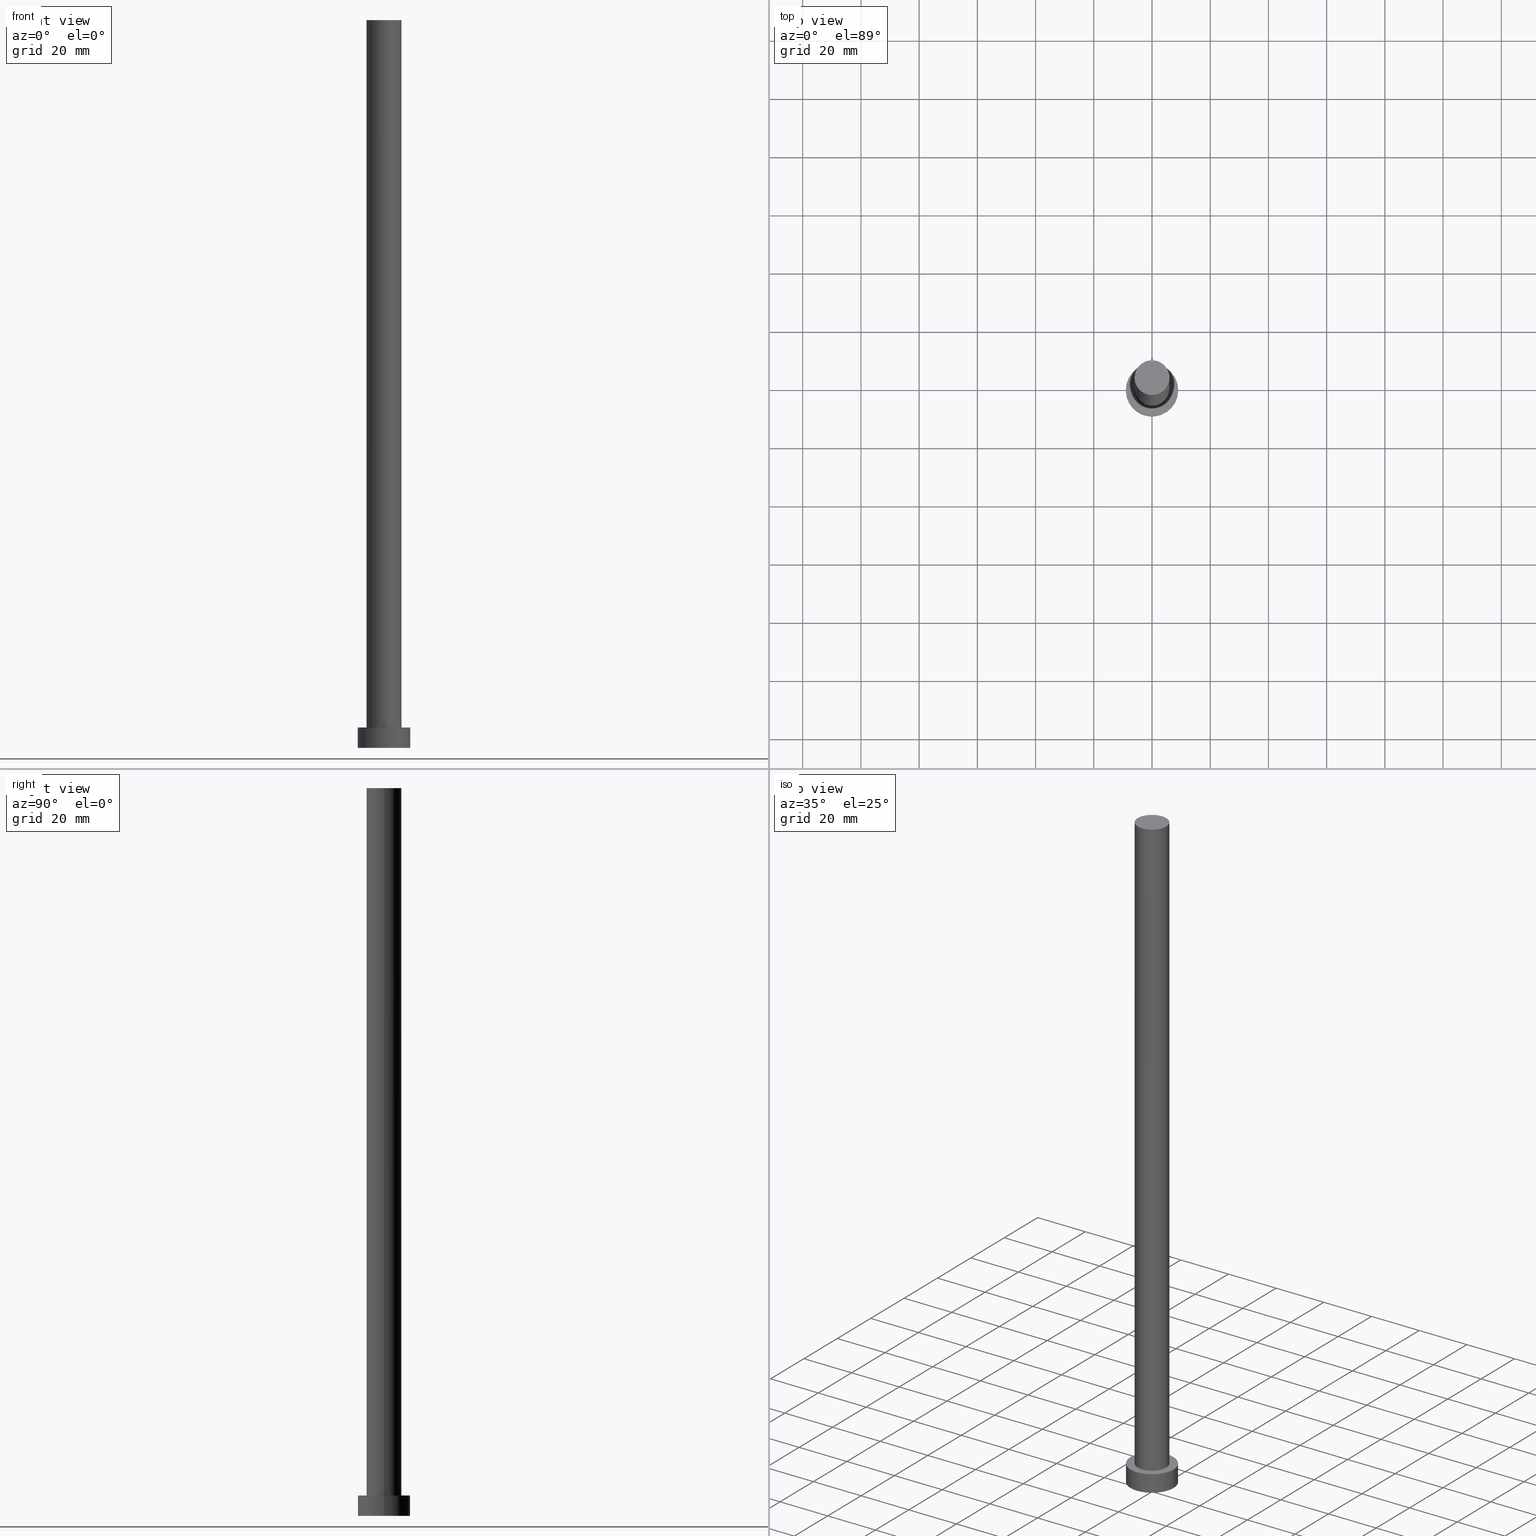
[diagram: canonical four-view strip — front | top / right | iso, engineering-drawing reading convention]
A machine part, canonical four-view strip (front | top / right | iso — engineering-drawing reading convention). The complete STEP part file that produces these views, byte-faithful:
ISO-10303-21;
HEADER;
FILE_DESCRIPTION (( 'STEP AP203' ),
    '1' );
FILE_NAME ('e88b.STEP',
    '2023-02-12T10:49:21',
    ( '' ),
    ( '' ),
    'SwSTEP 2.0',
    'SolidWorks 2019',
    '' );
FILE_SCHEMA (( 'CONFIG_CONTROL_DESIGN' ));
ENDSEC;

DATA;
#1 = EDGE_CURVE ( 'NONE', #241, #86, #206, .T. ) ;
#2 = APPROVAL ( #25, 'NEUR�EN�' ) ;
#3 = MANIFOLD_SOLID_BREP ( 'P�idat vysunut�m3', #160 ) ;
#4 = DIRECTION ( 'NONE',  ( 0.000000000000000000, 0.000000000000000000, 1.000000000000000000 ) ) ;
#5 = AXIS2_PLACEMENT_3D ( 'NONE', #195, #57, #120 ) ;
#6 = AXIS2_PLACEMENT_3D ( 'NONE', #229, #185, #248 ) ;
#7 = EDGE_CURVE ( 'NONE', #53, #50, #18, .T. ) ;
#8 = EDGE_CURVE ( 'NONE', #50, #148, #132, .T. ) ;
#9 = DATE_AND_TIME ( #237, #32 ) ;
#10 = EDGE_LOOP ( 'NONE', ( #209, #207, #124, #110 ) ) ;
#11 = AXIS2_PLACEMENT_3D ( 'NONE', #236, #40, #215 ) ;
#12 = CARTESIAN_POINT ( 'NONE',  ( 0.000000000000000000, 0.000000000000000000, 250.0000000000000000 ) ) ;
#13 = EDGE_LOOP ( 'NONE', ( #72, #33 ) ) ;
#14 = PRODUCT_RELATED_PRODUCT_CATEGORY ( 'detail', '', ( #221 ) ) ;
#15 = CARTESIAN_POINT ( 'NONE',  ( -9.000000000000000000, 0.000000000000000000, 7.000000000000000000 ) ) ;
#16 = SECURITY_CLASSIFICATION ( '', '', #49 ) ;
#17 = APPLICATION_PROTOCOL_DEFINITION ( 'international standard', 'config_control_design', 1994, #96 ) ;
#18 = LINE ( 'NONE', #168, #211 ) ;
#19 = DIRECTION ( 'NONE',  ( 0.000000000000000000, 0.000000000000000000, 1.000000000000000000 ) ) ;
#20 = CARTESIAN_POINT ( 'NONE',  ( 0.000000000000000000, 0.000000000000000000, 0.000000000000000000 ) ) ;
#21 = DIRECTION ( 'NONE',  ( 0.000000000000000000, 0.000000000000000000, 1.000000000000000000 ) ) ;
#22 = CYLINDRICAL_SURFACE ( 'NONE', #66, 9.000000000000000000 ) ;
#23 = DATE_AND_TIME ( #121, #162 ) ;
#24 = ORIENTED_EDGE ( 'NONE', *, *, #8, .F. ) ;
#25 = APPROVAL_STATUS ( 'not_yet_approved' ) ;
#26 = EDGE_LOOP ( 'NONE', ( #63, #92 ) ) ;
#27 = AXIS2_PLACEMENT_3D ( 'NONE', #158, #21, #238 ) ;
#28 = AXIS2_PLACEMENT_3D ( 'NONE', #192, #139, #196 ) ;
#29 = CC_DESIGN_APPROVAL ( #2, ( #16 ) ) ;
#30 = SHAPE_DEFINITION_REPRESENTATION ( #187, #141 ) ;
#31 = CARTESIAN_POINT ( 'NONE',  ( 0.000000000000000000, 0.000000000000000000, 7.000000000000000000 ) ) ;
#32 = LOCAL_TIME ( 11, 49, 21.00000000000000000, #178 ) ;
#33 = ORIENTED_EDGE ( 'NONE', *, *, #197, .F. ) ;
#34 = CC_DESIGN_PERSON_AND_ORGANIZATION_ASSIGNMENT ( #47, #218, ( #128 ) ) ;
#35 = DIRECTION ( 'NONE',  ( 0.000000000000000000, 0.000000000000000000, 1.000000000000000000 ) ) ;
#36 = CARTESIAN_POINT ( 'NONE',  ( -6.000000000000000888, 0.000000000000000000, 250.0000000000000000 ) ) ;
#37 = CIRCLE ( 'NONE', #27, 6.000000000000000888 ) ;
#38 = CARTESIAN_POINT ( 'NONE',  ( 6.000000000000000888, 7.347880794884120722E-16, 250.0000000000000000 ) ) ;
#39 = ADVANCED_FACE ( 'NONE', ( #169 ), #88, .T. ) ;
#40 = DIRECTION ( 'NONE',  ( 0.000000000000000000, 0.000000000000000000, 1.000000000000000000 ) ) ;
#41 = FACE_OUTER_BOUND ( 'NONE', #104, .T. ) ;
#42 = CIRCLE ( 'NONE', #74, 6.000000000000000888 ) ;
#43 = LINE ( 'NONE', #38, #73 ) ;
#44 = APPLICATION_CONTEXT ( 'configuration controlled 3d designs of mechanical parts and assemblies' ) ;
#45 = COORDINATED_UNIVERSAL_TIME_OFFSET ( 1, 0, .AHEAD. ) ;
#46 = DATE_AND_TIME ( #80, #234 ) ;
#47 = PERSON_AND_ORGANIZATION ( #166, #253 ) ;
#48 = EDGE_CURVE ( 'NONE', #107, #53, #42, .T. ) ;
#49 = SECURITY_CLASSIFICATION_LEVEL ( 'unclassified' ) ;
#50 = VERTEX_POINT ( 'NONE', #170 ) ;
#51 = CARTESIAN_POINT ( 'NONE',  ( 0.000000000000000000, 0.000000000000000000, 7.000000000000000000 ) ) ;
#52 = CARTESIAN_POINT ( 'NONE',  ( 0.000000000000000000, 0.000000000000000000, 250.0000000000000000 ) ) ;
#53 = VERTEX_POINT ( 'NONE', #36 ) ;
#54 = DIRECTION ( 'NONE',  ( -0.000000000000000000, -0.000000000000000000, -1.000000000000000000 ) ) ;
#55 = DIRECTION ( 'NONE',  ( 0.000000000000000000, 0.000000000000000000, 1.000000000000000000 ) ) ;
#56 = EDGE_CURVE ( 'NONE', #133, #241, #191, .T. ) ;
#57 = DIRECTION ( 'NONE',  ( 0.000000000000000000, 0.000000000000000000, 1.000000000000000000 ) ) ;
#58 = UNCERTAINTY_MEASURE_WITH_UNIT (LENGTH_MEASURE( 1.000000000000000082E-05 ), #97, 'distance_accuracy_value', 'NONE');
#59 = DIRECTION ( 'NONE',  ( -1.000000000000000000, 0.000000000000000000, 0.000000000000000000 ) ) ;
#60 = ADVANCED_FACE ( 'NONE', ( #156, #249 ), #252, .T. ) ;
#61 = PERSON_AND_ORGANIZATION_ROLE ( 'classification_officer' ) ;
#62 = EDGE_LOOP ( 'NONE', ( #24, #188 ) ) ;
#63 = ORIENTED_EDGE ( 'NONE', *, *, #150, .T. ) ;
#64 = DATE_TIME_ROLE ( 'classification_date' ) ;
#65 = ORIENTED_EDGE ( 'NONE', *, *, #1, .F. ) ;
#66 = AXIS2_PLACEMENT_3D ( 'NONE', #94, #54, #59 ) ;
#67 = DIRECTION ( 'NONE',  ( -0.000000000000000000, -0.000000000000000000, -1.000000000000000000 ) ) ;
#68 = DIRECTION ( 'NONE',  ( -0.000000000000000000, -0.000000000000000000, -1.000000000000000000 ) ) ;
#69 = ORIENTED_EDGE ( 'NONE', *, *, #56, .F. ) ;
#70 = AXIS2_PLACEMENT_3D ( 'NONE', #108, #4, #137 ) ;
#71 = DIRECTION ( 'NONE',  ( -0.000000000000000000, -0.000000000000000000, -1.000000000000000000 ) ) ;
#72 = ORIENTED_EDGE ( 'NONE', *, *, #204, .F. ) ;
#73 = VECTOR ( 'NONE', #136, 1000.000000000000000 ) ;
#74 = AXIS2_PLACEMENT_3D ( 'NONE', #12, #113, #227 ) ;
#75 = DIRECTION ( 'NONE',  ( 0.000000000000000000, 0.000000000000000000, 1.000000000000000000 ) ) ;
#76 = FACE_OUTER_BOUND ( 'NONE', #26, .T. ) ;
#77 = CC_DESIGN_SECURITY_CLASSIFICATION ( #16, ( #223 ) ) ;
#78 = AXIS2_PLACEMENT_3D ( 'NONE', #51, #35, #127 ) ;
#79 =( NAMED_UNIT ( * ) SI_UNIT ( $, .STERADIAN. ) SOLID_ANGLE_UNIT ( ) );
#80 = CALENDAR_DATE ( 2023, 12, 2 ) ;
#81 = COORDINATED_UNIVERSAL_TIME_OFFSET ( 1, 0, .AHEAD. ) ;
#82 = PERSON_AND_ORGANIZATION ( #166, #253 ) ;
#83 = APPROVAL_ROLE ( '' ) ;
#84 = EDGE_CURVE ( 'NONE', #133, #190, #205, .T. ) ;
#85 = APPROVAL_PERSON_ORGANIZATION ( #123, #175, #83 ) ;
#86 = VERTEX_POINT ( 'NONE', #129 ) ;
#87 = PERSON_AND_ORGANIZATION ( #166, #253 ) ;
#88 = CYLINDRICAL_SURFACE ( 'NONE', #149, 6.000000000000000888 ) ;
#89 = CARTESIAN_POINT ( 'NONE',  ( 9.000000000000000000, 1.102182119232617714E-15, 7.000000000000000000 ) ) ;
#90 = DIRECTION ( 'NONE',  ( 0.000000000000000000, 0.000000000000000000, 1.000000000000000000 ) ) ;
#91 = APPROVAL_PERSON_ORGANIZATION ( #235, #142, #98 ) ;
#92 = ORIENTED_EDGE ( 'NONE', *, *, #48, .T. ) ;
#93 = ADVANCED_FACE ( 'NONE', ( #232 ), #251, .T. ) ;
#94 = CARTESIAN_POINT ( 'NONE',  ( 0.000000000000000000, 0.000000000000000000, 7.000000000000000000 ) ) ;
#95 = EDGE_CURVE ( 'NONE', #241, #133, #242, .T. ) ;
#96 = APPLICATION_CONTEXT ( 'configuration controlled 3d designs of mechanical parts and assemblies' ) ;
#97 =( LENGTH_UNIT ( ) NAMED_UNIT ( * ) SI_UNIT ( .MILLI., .METRE. ) );
#98 = APPROVAL_ROLE ( '' ) ;
#99 = DESIGN_CONTEXT ( 'detailed design', #44, 'design' ) ;
#100 = CYLINDRICAL_SURFACE ( 'NONE', #28, 6.000000000000000888 ) ;
#101 = CC_DESIGN_DATE_AND_TIME_ASSIGNMENT ( #23, #198, ( #128 ) ) ;
#102 = APPROVAL_STATUS ( 'not_yet_approved' ) ;
#103 = ORIENTED_EDGE ( 'NONE', *, *, #150, .F. ) ;
#104 = EDGE_LOOP ( 'NONE', ( #246, #103, #231, #226 ) ) ;
#105 = CC_DESIGN_PERSON_AND_ORGANIZATION_ASSIGNMENT ( #82, #61, ( #16 ) ) ;
#106 =( NAMED_UNIT ( * ) PLANE_ANGLE_UNIT ( ) SI_UNIT ( $, .RADIAN. ) );
#107 = VERTEX_POINT ( 'NONE', #157 ) ;
#108 = CARTESIAN_POINT ( 'NONE',  ( 0.000000000000000000, 0.000000000000000000, 7.000000000000000000 ) ) ;
#109 = CIRCLE ( 'NONE', #119, 9.000000000000000000 ) ;
#110 = ORIENTED_EDGE ( 'NONE', *, *, #7, .F. ) ;
#111 = EDGE_LOOP ( 'NONE', ( #220, #186 ) ) ;
#112 = ADVANCED_FACE ( 'NONE', ( #41 ), #100, .T. ) ;
#113 = DIRECTION ( 'NONE',  ( 0.000000000000000000, 0.000000000000000000, 1.000000000000000000 ) ) ;
#114 = EDGE_LOOP ( 'NONE', ( #65, #69, #131, #208 ) ) ;
#115 = VECTOR ( 'NONE', #189, 1000.000000000000000 ) ;
#116 = CARTESIAN_POINT ( 'NONE',  ( 0.000000000000000000, 0.000000000000000000, 0.000000000000000000 ) ) ;
#117 = DIRECTION ( 'NONE',  ( 1.000000000000000000, 0.000000000000000000, 0.000000000000000000 ) ) ;
#118 = CARTESIAN_POINT ( 'NONE',  ( 6.000000000000000888, 7.347880794884120722E-16, 7.000000000000000000 ) ) ;
#119 = AXIS2_PLACEMENT_3D ( 'NONE', #179, #19, #193 ) ;
#120 = DIRECTION ( 'NONE',  ( 1.000000000000000000, 0.000000000000000000, 0.000000000000000000 ) ) ;
#121 = CALENDAR_DATE ( 2023, 12, 2 ) ;
#122 = ADVANCED_FACE ( 'NONE', ( #255 ), #22, .T. ) ;
#123 = PERSON_AND_ORGANIZATION ( #166, #253 ) ;
#124 = ORIENTED_EDGE ( 'NONE', *, *, #143, .T. ) ;
#125 = CC_DESIGN_APPROVAL ( #142, ( #128 ) ) ;
#126 = PERSON_AND_ORGANIZATION_ROLE ( 'creator' ) ;
#127 = DIRECTION ( 'NONE',  ( 1.000000000000000000, 0.000000000000000000, -0.000000000000000000 ) ) ;
#128 = PRODUCT_DEFINITION ( 'NEZN�M�', '', #223, #99 ) ;
#129 = CARTESIAN_POINT ( 'NONE',  ( 9.000000000000000000, 1.102182119232617714E-15, 0.000000000000000000 ) ) ;
#130 = AXIS2_PLACEMENT_3D ( 'NONE', #212, #75, #194 ) ;
#131 = ORIENTED_EDGE ( 'NONE', *, *, #84, .T. ) ;
#132 = CIRCLE ( 'NONE', #6, 6.000000000000000888 ) ;
#133 = VERTEX_POINT ( 'NONE', #233 ) ;
#134 = CC_DESIGN_DATE_AND_TIME_ASSIGNMENT ( #203, #64, ( #16 ) ) ;
#135 = ORIENTED_EDGE ( 'NONE', *, *, #95, .F. ) ;
#136 = DIRECTION ( 'NONE',  ( -0.000000000000000000, -0.000000000000000000, -1.000000000000000000 ) ) ;
#137 = DIRECTION ( 'NONE',  ( 1.000000000000000000, 0.000000000000000000, 0.000000000000000000 ) ) ;
#138 = DIRECTION ( 'NONE',  ( 0.000000000000000000, 0.000000000000000000, 1.000000000000000000 ) ) ;
#139 = DIRECTION ( 'NONE',  ( -0.000000000000000000, -0.000000000000000000, -1.000000000000000000 ) ) ;
#140 = ADVANCED_FACE ( 'NONE', ( #76 ), #174, .T. ) ;
#141 = ADVANCED_BREP_SHAPE_REPRESENTATION ( 'e88b', ( #3, #155 ), #247 ) ;
#142 = APPROVAL ( #213, 'NEUR�EN�' ) ;
#143 = EDGE_CURVE ( 'NONE', #148, #50, #159, .T. ) ;
#144 = EDGE_CURVE ( 'NONE', #107, #148, #43, .T. ) ;
#145 = COORDINATED_UNIVERSAL_TIME_OFFSET ( 1, 0, .AHEAD. ) ;
#146 = PERSON_AND_ORGANIZATION ( #166, #253 ) ;
#147 = CALENDAR_DATE ( 2023, 12, 2 ) ;
#148 = VERTEX_POINT ( 'NONE', #118 ) ;
#149 = AXIS2_PLACEMENT_3D ( 'NONE', #52, #67, #151 ) ;
#150 = EDGE_CURVE ( 'NONE', #53, #107, #37, .T. ) ;
#151 = DIRECTION ( 'NONE',  ( -1.000000000000000000, 0.000000000000000000, 0.000000000000000000 ) ) ;
#152 = PERSON_AND_ORGANIZATION_ROLE ( 'design_owner' ) ;
#153 = DIRECTION ( 'NONE',  ( -1.000000000000000000, 0.000000000000000000, 0.000000000000000000 ) ) ;
#154 = CC_DESIGN_PERSON_AND_ORGANIZATION_ASSIGNMENT ( #180, #181, ( #223 ) ) ;
#155 = AXIS2_PLACEMENT_3D ( 'NONE', #20, #138, #214 ) ;
#156 = FACE_BOUND ( 'NONE', #62, .T. ) ;
#157 = CARTESIAN_POINT ( 'NONE',  ( 6.000000000000000888, 7.347880794884120722E-16, 250.0000000000000000 ) ) ;
#158 = CARTESIAN_POINT ( 'NONE',  ( 0.000000000000000000, 0.000000000000000000, 250.0000000000000000 ) ) ;
#159 = CIRCLE ( 'NONE', #5, 6.000000000000000888 ) ;
#160 = CLOSED_SHELL ( 'NONE', ( #39, #93, #122, #60, #217, #112, #140 ) ) ;
#161 = CARTESIAN_POINT ( 'NONE',  ( 9.000000000000000000, 1.102182119232617714E-15, 7.000000000000000000 ) ) ;
#162 = LOCAL_TIME ( 11, 49, 21.00000000000000000, #45 ) ;
#163 = APPROVAL_DATE_TIME ( #9, #142 ) ;
#164 = APPROVAL_ROLE ( '' ) ;
#165 = APPROVAL_DATE_TIME ( #46, #175 ) ;
#166 = PERSON ( 'NEUR�EN�', 'NEUR�EN�', 'NEUR�EN�', ('NEUR�EN�'), ('NEUR�EN�'), ('NEUR�EN�') ) ;
#167 = CC_DESIGN_APPROVAL ( #175, ( #223 ) ) ;
#168 = CARTESIAN_POINT ( 'NONE',  ( -6.000000000000000888, 0.000000000000000000, 250.0000000000000000 ) ) ;
#169 = FACE_OUTER_BOUND ( 'NONE', #10, .T. ) ;
#170 = CARTESIAN_POINT ( 'NONE',  ( -6.000000000000000888, 0.000000000000000000, 7.000000000000000000 ) ) ;
#171 = DIRECTION ( 'NONE',  ( -0.000000000000000000, -0.000000000000000000, -1.000000000000000000 ) ) ;
#172 = MECHANICAL_CONTEXT ( 'NONE', #96, 'mechanical' ) ;
#173 = CARTESIAN_POINT ( 'NONE',  ( 0.000000000000000000, 0.000000000000000000, 7.000000000000000000 ) ) ;
#174 = PLANE ( 'NONE',  #11 ) ;
#175 = APPROVAL ( #102, 'NEUR�EN�' ) ;
#176 = FACE_OUTER_BOUND ( 'NONE', #13, .T. ) ;
#177 = LOCAL_TIME ( 11, 49, 21.00000000000000000, #81 ) ;
#178 = COORDINATED_UNIVERSAL_TIME_OFFSET ( 1, 0, .AHEAD. ) ;
#179 = CARTESIAN_POINT ( 'NONE',  ( 0.000000000000000000, 0.000000000000000000, 0.000000000000000000 ) ) ;
#180 = PERSON_AND_ORGANIZATION ( #166, #253 ) ;
#181 = PERSON_AND_ORGANIZATION_ROLE ( 'design_supplier' ) ;
#182 = APPROVAL_PERSON_ORGANIZATION ( #146, #2, #164 ) ;
#183 = AXIS2_PLACEMENT_3D ( 'NONE', #173, #90, #250 ) ;
#184 = ORIENTED_EDGE ( 'NONE', *, *, #84, .F. ) ;
#185 = DIRECTION ( 'NONE',  ( 0.000000000000000000, 0.000000000000000000, 1.000000000000000000 ) ) ;
#186 = ORIENTED_EDGE ( 'NONE', *, *, #95, .T. ) ;
#187 = PRODUCT_DEFINITION_SHAPE ( 'NONE', 'NONE',  #128 ) ;
#188 = ORIENTED_EDGE ( 'NONE', *, *, #143, .F. ) ;
#189 = DIRECTION ( 'NONE',  ( -0.000000000000000000, -0.000000000000000000, -1.000000000000000000 ) ) ;
#190 = VERTEX_POINT ( 'NONE', #210 ) ;
#191 = CIRCLE ( 'NONE', #183, 9.000000000000000000 ) ;
#192 = CARTESIAN_POINT ( 'NONE',  ( 0.000000000000000000, 0.000000000000000000, 250.0000000000000000 ) ) ;
#193 = DIRECTION ( 'NONE',  ( 1.000000000000000000, 0.000000000000000000, 0.000000000000000000 ) ) ;
#194 = DIRECTION ( 'NONE',  ( 1.000000000000000000, 0.000000000000000000, -0.000000000000000000 ) ) ;
#195 = CARTESIAN_POINT ( 'NONE',  ( 0.000000000000000000, 0.000000000000000000, 7.000000000000000000 ) ) ;
#196 = DIRECTION ( 'NONE',  ( -1.000000000000000000, 0.000000000000000000, 0.000000000000000000 ) ) ;
#197 = EDGE_CURVE ( 'NONE', #86, #190, #230, .T. ) ;
#198 = DATE_TIME_ROLE ( 'creation_date' ) ;
#199 = PERSON_AND_ORGANIZATION ( #166, #253 ) ;
#200 = DATE_AND_TIME ( #147, #224 ) ;
#201 = ORIENTED_EDGE ( 'NONE', *, *, #1, .T. ) ;
#202 = ORIENTED_EDGE ( 'NONE', *, *, #197, .T. ) ;
#203 = DATE_AND_TIME ( #240, #177 ) ;
#204 = EDGE_CURVE ( 'NONE', #190, #86, #109, .T. ) ;
#205 = LINE ( 'NONE', #15, #225 ) ;
#206 = LINE ( 'NONE', #89, #115 ) ;
#207 = ORIENTED_EDGE ( 'NONE', *, *, #144, .T. ) ;
#208 = ORIENTED_EDGE ( 'NONE', *, *, #204, .T. ) ;
#209 = ORIENTED_EDGE ( 'NONE', *, *, #48, .F. ) ;
#210 = CARTESIAN_POINT ( 'NONE',  ( -9.000000000000000000, 0.000000000000000000, 0.000000000000000000 ) ) ;
#211 = VECTOR ( 'NONE', #68, 1000.000000000000000 ) ;
#212 = CARTESIAN_POINT ( 'NONE',  ( 0.000000000000000000, 0.000000000000000000, 0.000000000000000000 ) ) ;
#213 = APPROVAL_STATUS ( 'not_yet_approved' ) ;
#214 = DIRECTION ( 'NONE',  ( 1.000000000000000000, 0.000000000000000000, 0.000000000000000000 ) ) ;
#215 = DIRECTION ( 'NONE',  ( 1.000000000000000000, 0.000000000000000000, -0.000000000000000000 ) ) ;
#216 = AXIS2_PLACEMENT_3D ( 'NONE', #31, #71, #153 ) ;
#217 = ADVANCED_FACE ( 'NONE', ( #176 ), #254, .F. ) ;
#218 = PERSON_AND_ORGANIZATION_ROLE ( 'creator' ) ;
#219 = CC_DESIGN_PERSON_AND_ORGANIZATION_ASSIGNMENT ( #87, #152, ( #221 ) ) ;
#220 = ORIENTED_EDGE ( 'NONE', *, *, #56, .T. ) ;
#221 = PRODUCT ( 'e88b', 'e88b', '', ( #172 ) ) ;
#222 = COORDINATED_UNIVERSAL_TIME_OFFSET ( 1, 0, .AHEAD. ) ;
#223 = PRODUCT_DEFINITION_FORMATION_WITH_SPECIFIED_SOURCE ( 'LIBOVOLN�', '', #221, .NOT_KNOWN. ) ;
#224 = LOCAL_TIME ( 11, 49, 21.00000000000000000, #145 ) ;
#225 = VECTOR ( 'NONE', #171, 1000.000000000000000 ) ;
#226 = ORIENTED_EDGE ( 'NONE', *, *, #8, .T. ) ;
#227 = DIRECTION ( 'NONE',  ( 1.000000000000000000, 0.000000000000000000, 0.000000000000000000 ) ) ;
#228 = APPLICATION_PROTOCOL_DEFINITION ( 'international standard', 'config_control_design', 1994, #44 ) ;
#229 = CARTESIAN_POINT ( 'NONE',  ( 0.000000000000000000, 0.000000000000000000, 7.000000000000000000 ) ) ;
#230 = CIRCLE ( 'NONE', #239, 9.000000000000000000 ) ;
#231 = ORIENTED_EDGE ( 'NONE', *, *, #7, .T. ) ;
#232 = FACE_OUTER_BOUND ( 'NONE', #245, .T. ) ;
#233 = CARTESIAN_POINT ( 'NONE',  ( -9.000000000000000000, 0.000000000000000000, 7.000000000000000000 ) ) ;
#234 = LOCAL_TIME ( 11, 49, 21.00000000000000000, #222 ) ;
#235 = PERSON_AND_ORGANIZATION ( #166, #253 ) ;
#236 = CARTESIAN_POINT ( 'NONE',  ( 0.000000000000000000, 0.000000000000000000, 250.0000000000000000 ) ) ;
#237 = CALENDAR_DATE ( 2023, 12, 2 ) ;
#238 = DIRECTION ( 'NONE',  ( 1.000000000000000000, 0.000000000000000000, 0.000000000000000000 ) ) ;
#239 = AXIS2_PLACEMENT_3D ( 'NONE', #116, #55, #117 ) ;
#240 = CALENDAR_DATE ( 2023, 12, 2 ) ;
#241 = VERTEX_POINT ( 'NONE', #161 ) ;
#242 = CIRCLE ( 'NONE', #70, 9.000000000000000000 ) ;
#243 = CC_DESIGN_PERSON_AND_ORGANIZATION_ASSIGNMENT ( #199, #126, ( #223 ) ) ;
#244 = APPROVAL_DATE_TIME ( #200, #2 ) ;
#245 = EDGE_LOOP ( 'NONE', ( #135, #201, #202, #184 ) ) ;
#246 = ORIENTED_EDGE ( 'NONE', *, *, #144, .F. ) ;
#247 =( GEOMETRIC_REPRESENTATION_CONTEXT ( 3 ) GLOBAL_UNCERTAINTY_ASSIGNED_CONTEXT ( ( #58 ) ) GLOBAL_UNIT_ASSIGNED_CONTEXT ( ( #97, #106, #79 ) ) REPRESENTATION_CONTEXT ( 'NONE', 'WORKASPACE' ) );
#248 = DIRECTION ( 'NONE',  ( 1.000000000000000000, 0.000000000000000000, 0.000000000000000000 ) ) ;
#249 = FACE_OUTER_BOUND ( 'NONE', #111, .T. ) ;
#250 = DIRECTION ( 'NONE',  ( 1.000000000000000000, 0.000000000000000000, 0.000000000000000000 ) ) ;
#251 = CYLINDRICAL_SURFACE ( 'NONE', #216, 9.000000000000000000 ) ;
#252 = PLANE ( 'NONE',  #78 ) ;
#253 = ORGANIZATION ( 'NEUR�EN�', 'NEUR�EN�', '' ) ;
#254 = PLANE ( 'NONE',  #130 ) ;
#255 = FACE_OUTER_BOUND ( 'NONE', #114, .T. ) ;
ENDSEC;
END-ISO-10303-21;
